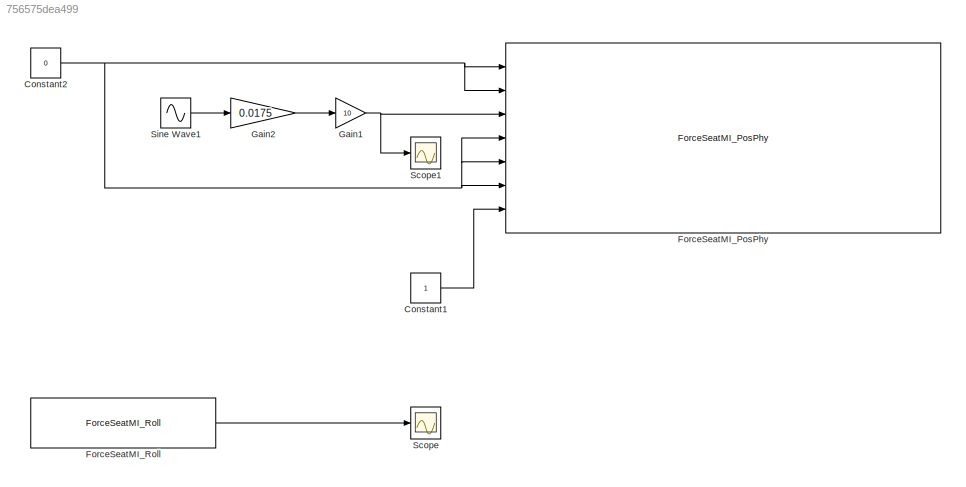
MODEL slx_756575dea499
KIND model
CONFIG AbsTol = auto
CONFIG EnableMultiTasking = off
CONFIG FixedStep = auto
CONFIG MaxStep = auto
CONFIG MinStep = auto
CONFIG RelTol = 1e-3
CONFIG SampleTimeConstraint = Unconstrained
CONFIG Solver = VariableStepAuto
CONFIG SolverName = VariableStepAuto
CONFIG StartTime = 0.0
CONFIG StopTime = 100
BLOCK [Constant] Constant1
  OutDataTypeStr = int32
BLOCK [Constant] Constant2
  Value = 0
BLOCK [Reference] ForceSeatMI_PosPhy  REF=MotionSystems_Simulink/ForceSeatMI_PosPhy
  Ports = [7]
  SourceBlock = MotionSystems_Simulink/ForceSeatMI_PosPhy
  SourceProductName = MotionsSystems ForceSeat MI
  SourceType = CCaller
BLOCK [Reference] ForceSeatMI_Roll  REF=MotionSystems_Simulink/ForceSeatMI_Roll
  Ports = [0, 1]
  SourceBlock = MotionSystems_Simulink/ForceSeatMI_Roll
  SourceProductName = MotionsSystems ForceSeatMI
  SourceType = CCaller
BLOCK [Gain] Gain1
  Gain = 10
  OutDataTypeStr = Inherit: Inherit via internal rule
  ParamDataTypeStr = Inherit: Inherit via internal rule
  SaturateOnIntegerOverflow = off
BLOCK [Gain] Gain2
  Gain = 0.0175
  OutDataTypeStr = Inherit: Inherit via internal rule
  ParamDataTypeStr = Inherit: Inherit via internal rule
  SaturateOnIntegerOverflow = off
BLOCK [Scope] Scope
  Floating = off
  NumInputPorts = 1
  Ports = [1]
  ScopeSpecificationString = Simulink.scopes.TimeScopeBlockCfg('CurrentConfiguration', extmgr.ConfigurationSet(extmgr.Configuration('Core','General UI',true),extmgr.Configuration('Core','Source UI',true),extmgr.Configuration('Sources','WiredSimulink',true,'DataLoggingVariableName','ScopeData1'),extmgr.Configuration('Visuals','Time Domain',true),extmgr.Configuration('Tools','Plot Navigation',true),extmgr.Configuration('Tools',...<+40ch>
BLOCK [Scope] Scope1
  Floating = off
  NumInputPorts = 1
  Ports = [1]
  ScopeSpecificationString = Simulink.scopes.TimeScopeBlockCfg('CurrentConfiguration', extmgr.ConfigurationSet(extmgr.Configuration('Core','General UI',true),extmgr.Configuration('Core','Source UI',true),extmgr.Configuration('Sources','WiredSimulink',true,'DataLoggingVariableName','ScopeData1'),extmgr.Configuration('Visuals','Time Domain',true,'SerializedDisplays',{struct('MinYLimReal','-0.21875','MaxYLimReal','0.21875','YLab...<+1394ch>
BLOCK [Sin] Sine Wave1
  Ports = [0, 1]
  SampleTime = 0.01
LINE Constant1:1 -> ForceSeatMI_PosPhy:7
NET Constant2:1 -> ForceSeatMI_PosPhy:1, ForceSeatMI_PosPhy:2, ForceSeatMI_PosPhy:4, ForceSeatMI_PosPhy:5, ForceSeatMI_PosPhy:6
LINE ForceSeatMI_Roll:1 -> Scope:1
NET Gain1:1 -> ForceSeatMI_PosPhy:3, Scope1:1
LINE Gain2:1 -> Gain1:1
LINE Sine Wave1:1 -> Gain2:1
note: NET lines group one-source signal fan-out (src -> all destinations, sorted); 1:1 wires keep LINE
